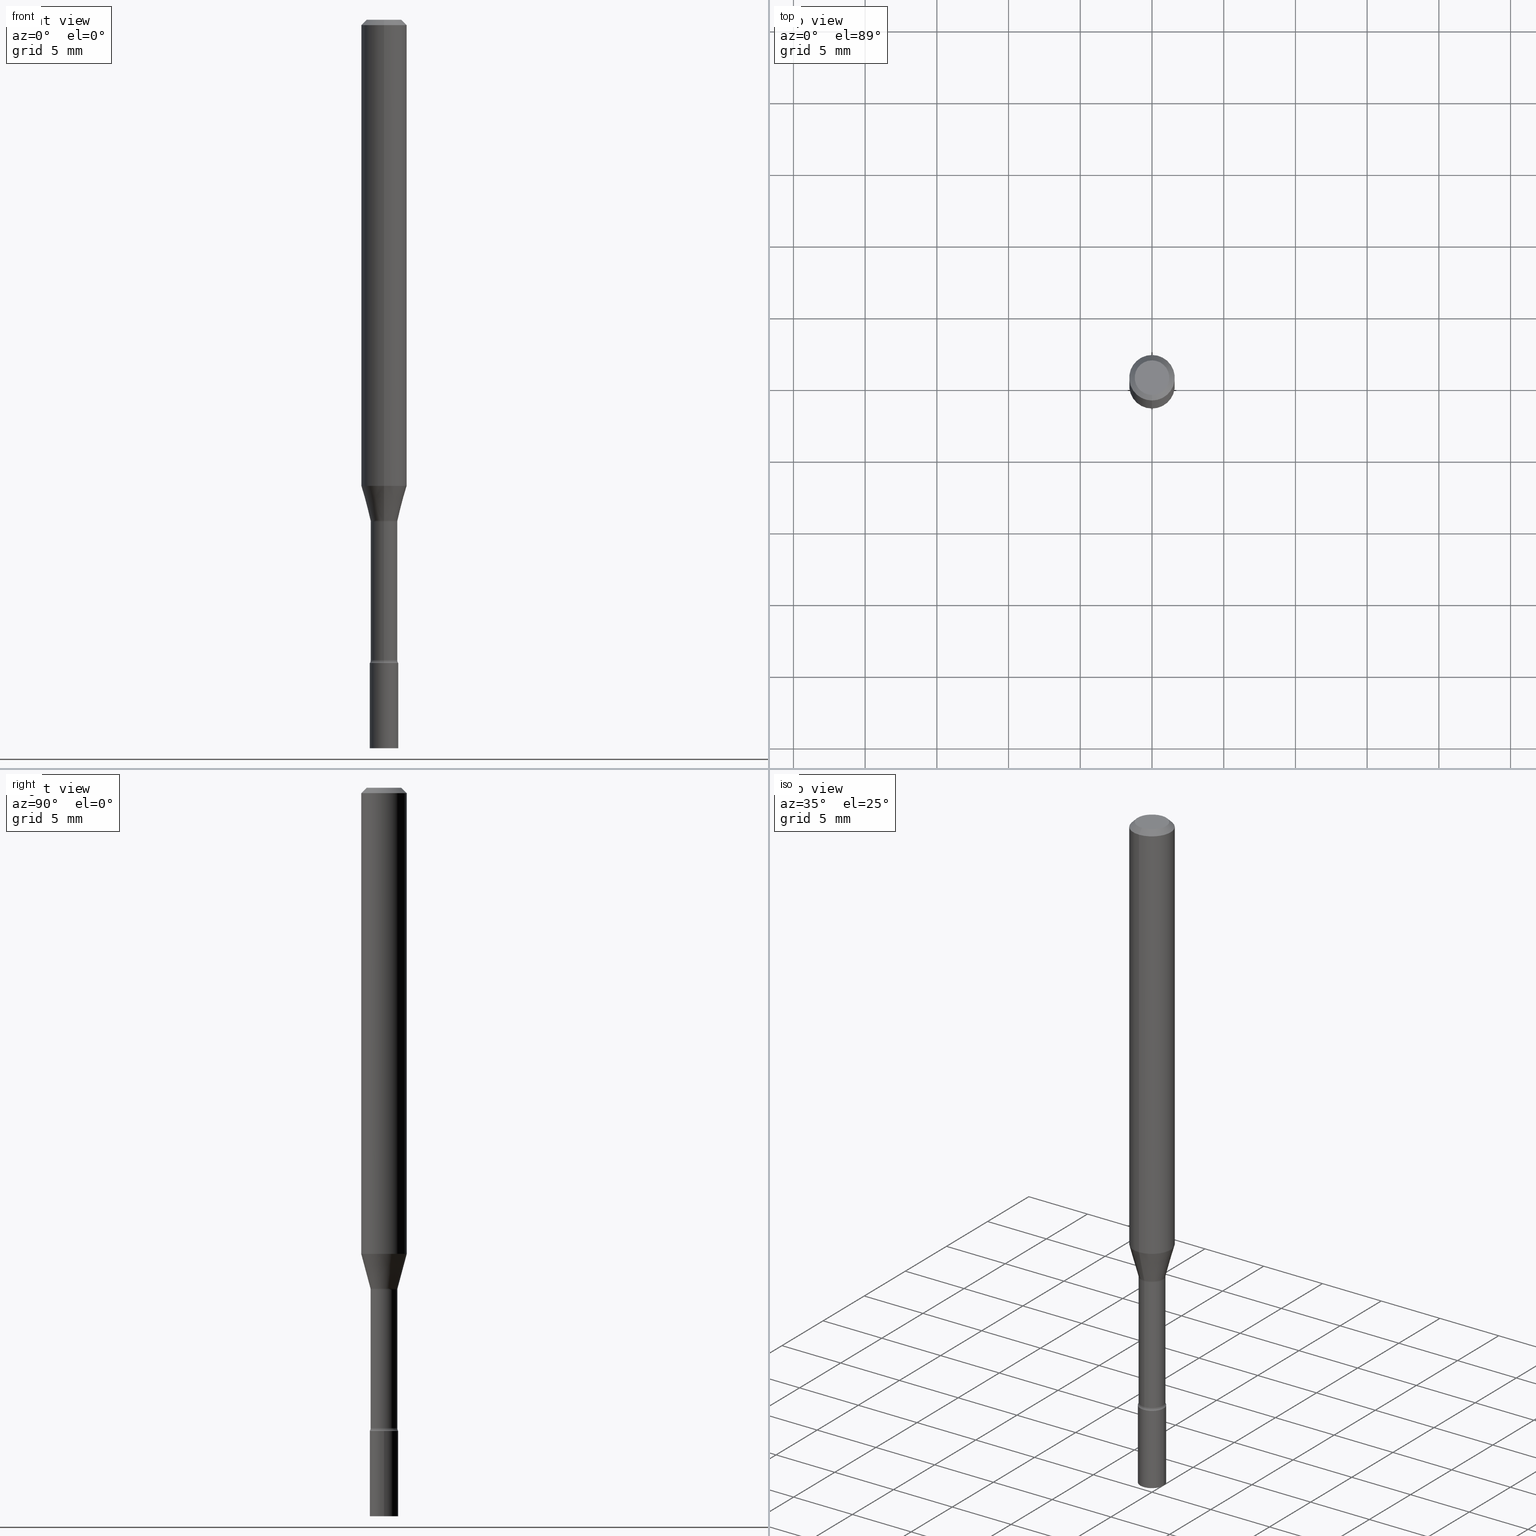
[diagram: canonical four-view strip — front | top / right | iso, engineering-drawing reading convention]
A machine part, canonical four-view strip (front | top / right | iso — engineering-drawing reading convention). The complete STEP part file that produces these views, byte-faithful:
ISO-10303-21;
HEADER;
FILE_DESCRIPTION (( 'STEP AP203' ),
    '1' );
FILE_NAME ('01328.STEP',
    '2024-03-08T21:14:19',
    ( '' ),
    ( '' ),
    'SwSTEP 2.0',
    'SolidWorks 2023',
    '' );
FILE_SCHEMA (( 'CONFIG_CONTROL_DESIGN' ));
ENDSEC;

DATA;
#1 = ORIENTED_EDGE ( 'NONE', *, *, #280, .F. ) ;
#2 = LINE ( 'NONE', #405, #481 ) ;
#3 = CIRCLE ( 'NONE', #144, 0.03899999999999999994 ) ;
#4 = EDGE_CURVE ( 'NONE', #170, #197, #101, .T. ) ;
#5 = AXIS2_PLACEMENT_3D ( 'NONE', #29, #76, #152 ) ;
#6 = CARTESIAN_POINT ( 'NONE',  ( 4.440892098500940720E-16, 0.06249999999999995143, -0.01500000000000024751 ) ) ;
#7 = EDGE_CURVE ( 'NONE', #195, #498, #408, .T. ) ;
#8 = ADVANCED_FACE ( 'NONE', ( #307 ), #262, .F. ) ;
#9 = CARTESIAN_POINT ( 'NONE',  ( 7.070481451418805640E-46, -1.009491138018014356E-31, -2.891277777756140299E-17 ) ) ;
#10 = VECTOR ( 'NONE', #377, 39.37007874015748143 ) ;
#11 = VECTOR ( 'NONE', #376, 39.37007874015748143 ) ;
#12 = EDGE_CURVE ( 'NONE', #498, #195, #132, .T. ) ;
#13 = LOCAL_TIME ( 16, 14, 19.00000000000000000, #337 ) ;
#14 = ADVANCED_FACE ( 'NONE', ( #63 ), #475, .F. ) ;
#15 = VERTEX_POINT ( 'NONE', #518 ) ;
#16 = DIRECTION ( 'NONE',  ( -6.982962677686265922E-15, -1.000000000000000000, 3.491505194639095236E-15 ) ) ;
#17 = ORIENTED_EDGE ( 'NONE', *, *, #217, .F. ) ;
#18 = CARTESIAN_POINT ( 'NONE',  ( 0.000000000000000000, 0.000000000000000000, 0.000000000000000000 ) ) ;
#19 = CARTESIAN_POINT ( 'NONE',  ( 3.369771403578849424E-29, -4.811206128511599572E-15, -1.377974787463811079 ) ) ;
#20 = AXIS2_PLACEMENT_3D ( 'NONE', #185, #246, #382 ) ;
#21 = CARTESIAN_POINT ( 'NONE',  ( 0.000000000000000000, 0.000000000000000000, 0.000000000000000000 ) ) ;
#22 = ORIENTED_EDGE ( 'NONE', *, *, #40, .T. ) ;
#23 = AXIS2_PLACEMENT_3D ( 'NONE', #257, #32, #263 ) ;
#24 = DIRECTION ( 'NONE',  ( -6.982962677686265922E-15, -1.000000000000000000, 3.491505194639095236E-15 ) ) ;
#25 = VERTEX_POINT ( 'NONE', #186 ) ;
#26 = ORIENTED_EDGE ( 'NONE', *, *, #191, .F. ) ;
#27 = CYLINDRICAL_SURFACE ( 'NONE', #380, 0.03899999999999999994 ) ;
#28 = AXIS2_PLACEMENT_3D ( 'NONE', #51, #173, #95 ) ;
#29 = CARTESIAN_POINT ( 'NONE',  ( 4.318697911722950844E-29, -6.165956044396995152E-15, -1.766000000000000014 ) ) ;
#30 = CONICAL_SURFACE ( 'NONE', #453, 0.03716111260566398039, 0.2617993877991502405 ) ;
#31 = FACE_OUTER_BOUND ( 'NONE', #507, .T. ) ;
#32 = DIRECTION ( 'NONE',  ( -2.445452147771860256E-29, 3.491505194639095236E-15, 1.000000000000000000 ) ) ;
#33 = DIRECTION ( 'NONE',  ( 7.105427357601001859E-15, 1.000000000000000000, 0.000000000000000000 ) ) ;
#34 = ORIENTED_EDGE ( 'NONE', *, *, #191, .T. ) ;
#35 = DIRECTION ( 'NONE',  ( 6.982962677686265922E-15, 1.000000000000000000, -3.483106191921935554E-15 ) ) ;
#36 = VECTOR ( 'NONE', #451, 39.37007874015748143 ) ;
#37 = PRODUCT ( '01328', '01328', '', ( #302 ) ) ;
#38 = ADVANCED_FACE ( 'NONE', ( #31 ), #55, .T. ) ;
#39 = COORDINATED_UNIVERSAL_TIME_OFFSET ( 5, 0, .BEHIND. ) ;
#40 = EDGE_CURVE ( 'NONE', #269, #312, #123, .T. ) ;
#41 = DIRECTION ( 'NONE',  ( 7.105427357601001859E-15, 1.000000000000000000, 0.000000000000000000 ) ) ;
#42 = CC_DESIGN_DATE_AND_TIME_ASSIGNMENT ( #350, #503, ( #374 ) ) ;
#43 = AXIS2_PLACEMENT_3D ( 'NONE', #299, #403, #228 ) ;
#44 = EDGE_CURVE ( 'NONE', #131, #230, #220, .T. ) ;
#45 = ORIENTED_EDGE ( 'NONE', *, *, #493, .F. ) ;
#46 = LINE ( 'NONE', #118, #36 ) ;
#47 = CC_DESIGN_PERSON_AND_ORGANIZATION_ASSIGNMENT ( #305, #103, ( #306 ) ) ;
#48 = ORIENTED_EDGE ( 'NONE', *, *, #280, .T. ) ;
#49 = ORIENTED_EDGE ( 'NONE', *, *, #490, .T. ) ;
#50 = AXIS2_PLACEMENT_3D ( 'NONE', #260, #428, #208 ) ;
#51 = CARTESIAN_POINT ( 'NONE',  ( 3.360277459732895560E-29, -4.797651107904894266E-15, -1.374092501787273157 ) ) ;
#52 = CC_DESIGN_APPROVAL ( #457, ( #145 ) ) ;
#53 = ORIENTED_EDGE ( 'NONE', *, *, #484, .T. ) ;
#54 = ADVANCED_FACE ( 'NONE', ( #393 ), #27, .T. ) ;
#55 = CYLINDRICAL_SURFACE ( 'NONE', #75, 0.03665000000000002284 ) ;
#56 = ORIENTED_EDGE ( 'NONE', *, *, #44, .T. ) ;
#57 = CARTESIAN_POINT ( 'NONE',  ( 3.360277459732895560E-29, -4.797651107904894266E-15, -1.374092501787273157 ) ) ;
#58 = CC_DESIGN_DATE_AND_TIME_ASSIGNMENT ( #487, #355, ( #145 ) ) ;
#59 = CARTESIAN_POINT ( 'NONE',  ( -3.606700223024530550E-16, -0.05165000000000619790, -1.757939137763241177 ) ) ;
#60 = COORDINATED_UNIVERSAL_TIME_OFFSET ( 5, 0, .BEHIND. ) ;
#61 = CARTESIAN_POINT ( 'NONE',  ( -4.364351673553916201E-16, -0.06250000000000000000, 2.182190746649434522E-16 ) ) ;
#62 = AXIS2_PLACEMENT_3D ( 'NONE', #267, #515, #399 ) ;
#63 = FACE_OUTER_BOUND ( 'NONE', #155, .T. ) ;
#64 = AXIS2_PLACEMENT_3D ( 'NONE', #495, #424, #136 ) ;
#65 = ADVANCED_FACE ( 'NONE', ( #438 ), #461, .T. ) ;
#66 = DIRECTION ( 'NONE',  ( -6.982962677686266711E-15, -1.000000000000000000, 3.491505194639096025E-15 ) ) ;
#67 = DIRECTION ( 'NONE',  ( -6.982962677686266711E-15, -1.000000000000000000, 3.491505194639096025E-15 ) ) ;
#68 = VERTEX_POINT ( 'NONE', #344 ) ;
#69 = DIRECTION ( 'NONE',  ( -6.982962677686267499E-15, -1.000000000000000000, 0.000000000000000000 ) ) ;
#70 = CARTESIAN_POINT ( 'NONE',  ( 0.03899999999999999994, -7.255298222116054399E-15, -2.000000000000000000 ) ) ;
#71 = CARTESIAN_POINT ( 'NONE',  ( 3.668178221657797460E-31, -5.237257791958653577E-17, -0.01500000000000003067 ) ) ;
#72 = ORIENTED_EDGE ( 'NONE', *, *, #445, .T. ) ;
#73 = PERSON_AND_ORGANIZATION ( #83, #336 ) ;
#74 = DIRECTION ( 'NONE',  ( -6.982962677686265922E-15, -1.000000000000000000, 0.000000000000000000 ) ) ;
#75 = AXIS2_PLACEMENT_3D ( 'NONE', #224, #146, #139 ) ;
#76 = DIRECTION ( 'NONE',  ( -2.438088387897960049E-29, 3.491481338843145188E-15, 1.000000000000000000 ) ) ;
#77 = CIRCLE ( 'NONE', #327, 0.01500000000000001853 ) ;
#78 = EDGE_CURVE ( 'NONE', #370, #232, #259, .T. ) ;
#79 = APPROVAL_ROLE ( '' ) ;
#80 = ORIENTED_EDGE ( 'NONE', *, *, #148, .T. ) ;
#81 = FACE_OUTER_BOUND ( 'NONE', #364, .T. ) ;
#82 = LINE ( 'NONE', #444, #176 ) ;
#83 = PERSON ( 'UNSPECIFIED', 'UNSPECIFIED', 'UNSPECIFIED', ('UNSPECIFIED'), ('UNSPECIFIED'), ('UNSPECIFIED') ) ;
#84 = CIRCLE ( 'NONE', #202, 0.03716111260566398039 ) ;
#85 = CIRCLE ( 'NONE', #199, 0.01500000000000001853 ) ;
#86 = ORIENTED_EDGE ( 'NONE', *, *, #133, .F. ) ;
#87 = EDGE_CURVE ( 'NONE', #170, #468, #100, .T. ) ;
#88 = ADVANCED_FACE ( 'NONE', ( #292 ), #223, .F. ) ;
#89 = AXIS2_PLACEMENT_3D ( 'NONE', #162, #317, #486 ) ;
#90 = FACE_OUTER_BOUND ( 'NONE', #239, .T. ) ;
#91 = CARTESIAN_POINT ( 'NONE',  ( -2.594946623866146070E-16, -0.03716111260566878211, -1.374092501787273157 ) ) ;
#92 = EDGE_LOOP ( 'NONE', ( #17, #86 ) ) ;
#93 = APPROVAL_ROLE ( '' ) ;
#94 = LINE ( 'NONE', #510, #11 ) ;
#95 = DIRECTION ( 'NONE',  ( -6.982962677686265133E-15, -1.000000000000000000, 0.000000000000000000 ) ) ;
#96 = DIRECTION ( 'NONE',  ( 4.937700262164548042E-15, 0.7071067811865451302, -0.7071067811865499042 ) ) ;
#97 = DIRECTION ( 'NONE',  ( 1.000000000000000000, 0.000000000000000000, 0.000000000000000000 ) ) ;
#98 = ORIENTED_EDGE ( 'NONE', *, *, #7, .F. ) ;
#99 = ORIENTED_EDGE ( 'NONE', *, *, #148, .F. ) ;
#100 = CIRCLE ( 'NONE', #439, 0.04749999999999999362 ) ;
#101 = LINE ( 'NONE', #211, #469 ) ;
#102 = AXIS2_PLACEMENT_3D ( 'NONE', #516, #479, #311 ) ;
#103 = PERSON_AND_ORGANIZATION_ROLE ( 'design_supplier' ) ;
#104 = APPROVAL ( #346, 'UNSPECIFIED' ) ;
#105 = ORIENTED_EDGE ( 'NONE', *, *, #490, .F. ) ;
#106 =( LENGTH_UNIT ( ) NAMED_UNIT ( * ) SI_UNIT ( $, .METRE. ) );
#107 = EDGE_CURVE ( 'NONE', #15, #197, #165, .T. ) ;
#108 = DIRECTION ( 'NONE',  ( -2.445468806185136597E-29, 3.491481338843145583E-15, 1.000000000000000000 ) ) ;
#109 = FACE_OUTER_BOUND ( 'NONE', #454, .T. ) ;
#110 = DATE_AND_TIME ( #161, #206 ) ;
#111 = ORIENTED_EDGE ( 'NONE', *, *, #172, .F. ) ;
#112 = CIRCLE ( 'NONE', #501, 0.01500000000000001853 ) ;
#113 = FACE_OUTER_BOUND ( 'NONE', #472, .T. ) ;
#114 = DIRECTION ( 'NONE',  ( 1.000000000000000000, -7.105427357601001070E-15, 4.926315800691323509E-29 ) ) ;
#115 = CIRCLE ( 'NONE', #412, 0.03899999999999999994 ) ;
#116 = ORIENTED_EDGE ( 'NONE', *, *, #217, .T. ) ;
#117 = DIRECTION ( 'NONE',  ( -2.445468806185136597E-29, 3.491481338843145583E-15, 1.000000000000000000 ) ) ;
#118 = CARTESIAN_POINT ( 'NONE',  ( -4.287811248607203282E-16, -0.06250000000000005551, -0.01499999999999981209 ) ) ;
#119 = ORIENTED_EDGE ( 'NONE', *, *, #78, .F. ) ;
#120 = CARTESIAN_POINT ( 'NONE',  ( 4.890937612370273194E-29, -6.982962677686291165E-15, -2.000000000000000000 ) ) ;
#121 = CARTESIAN_POINT ( 'NONE',  ( -2.559255821372017909E-16, -0.03665000000000002284, 1.279636653835229157E-16 ) ) ;
#122 = SHAPE_DEFINITION_REPRESENTATION ( #488, #124 ) ;
#123 = CIRCLE ( 'NONE', #489, 0.01500000000000001853 ) ;
#124 = ADVANCED_BREP_SHAPE_REPRESENTATION ( '01328', ( #129, #126, #235 ), #315 ) ;
#125 = LOCAL_TIME ( 16, 14, 19.00000000000000000, #60 ) ;
#126 = MANIFOLD_SOLID_BREP ( 'Body-Move/Copy2[2]', #410 ) ;
#127 = DIRECTION ( 'NONE',  ( -2.445452147771860256E-29, 3.491505194639094841E-15, 1.000000000000000000 ) ) ;
#128 = AXIS2_PLACEMENT_3D ( 'NONE', #358, #362, #443 ) ;
#129 = MANIFOLD_SOLID_BREP ( 'Body-Move/Copy2[1]', #166 ) ;
#130 = ORIENTED_EDGE ( 'NONE', *, *, #4, .T. ) ;
#131 = VERTEX_POINT ( 'NONE', #300 ) ;
#132 = CIRCLE ( 'NONE', #396, 0.03665000000000003672 ) ;
#133 = EDGE_CURVE ( 'NONE', #131, #402, #234, .T. ) ;
#134 = AXIS2_PLACEMENT_3D ( 'NONE', #418, #205, #16 ) ;
#135 = EDGE_LOOP ( 'NONE', ( #384, #456, #34, #446 ) ) ;
#136 = DIRECTION ( 'NONE',  ( 1.000000000000000000, -6.982962677686265922E-15, 4.876176775795935793E-29 ) ) ;
#137 = PERSON_AND_ORGANIZATION ( #83, #336 ) ;
#138 = ADVANCED_FACE ( 'NONE', ( #354 ), #462, .T. ) ;
#139 = DIRECTION ( 'NONE',  ( -6.982962677686265133E-15, -1.000000000000000000, 3.491505194639095236E-15 ) ) ;
#140 = CARTESIAN_POINT ( 'NONE',  ( 7.070481451418805640E-46, -1.009491138018014356E-31, -2.891277777756140299E-17 ) ) ;
#141 = ORIENTED_EDGE ( 'NONE', *, *, #369, .F. ) ;
#142 = CC_DESIGN_PERSON_AND_ORGANIZATION_ASSIGNMENT ( #427, #331, ( #374 ) ) ;
#143 = APPROVAL_ROLE ( '' ) ;
#144 = AXIS2_PLACEMENT_3D ( 'NONE', #196, #117, #360 ) ;
#145 = SECURITY_CLASSIFICATION ( '', '', #434 ) ;
#146 = DIRECTION ( 'NONE',  ( -2.445452147771860256E-29, 3.491505194639095236E-15, 1.000000000000000000 ) ) ;
#147 = PERSON_AND_ORGANIZATION_ROLE ( 'classification_officer' ) ;
#148 = EDGE_CURVE ( 'NONE', #151, #269, #84, .T. ) ;
#149 = ORIENTED_EDGE ( 'NONE', *, *, #411, .F. ) ;
#150 = DIRECTION ( 'NONE',  ( 2.438088387897960049E-29, -3.491481338843145188E-15, -1.000000000000000000 ) ) ;
#151 = VERTEX_POINT ( 'NONE', #404 ) ;
#152 = DIRECTION ( 'NONE',  ( 1.000000000000000000, -6.982962677686265922E-15, 4.876176775795935793E-29 ) ) ;
#153 = DIRECTION ( 'NONE',  ( -2.445452147771860256E-29, 3.491505194639094841E-15, 1.000000000000000000 ) ) ;
#154 = APPROVAL_STATUS ( 'not_yet_approved' ) ;
#155 = EDGE_LOOP ( 'NONE', ( #119, #478 ) ) ;
#156 = AXIS2_PLACEMENT_3D ( 'NONE', #71, #470, #391 ) ;
#157 = APPROVAL_PERSON_ORGANIZATION ( #222, #104, #93 ) ;
#158 = EDGE_CURVE ( 'NONE', #195, #232, #112, .T. ) ;
#159 = FACE_OUTER_BOUND ( 'NONE', #266, .T. ) ;
#160 = LINE ( 'NONE', #121, #289 ) ;
#161 = CALENDAR_DATE ( 2024, 8, 3 ) ;
#162 = CARTESIAN_POINT ( 'NONE',  ( 4.298985324572002623E-29, -6.137811694322366834E-15, -1.757939137763241400 ) ) ;
#163 = AXIS2_PLACEMENT_3D ( 'NONE', #385, #466, #308 ) ;
#164 = ORIENTED_EDGE ( 'NONE', *, *, #87, .T. ) ;
#165 = CIRCLE ( 'NONE', #156, 0.06250000000000000000 ) ;
#166 = CLOSED_SHELL ( 'NONE', ( #277, #407, #54, #138 ) ) ;
#167 = ORIENTED_EDGE ( 'NONE', *, *, #40, .F. ) ;
#168 = AXIS2_PLACEMENT_3D ( 'NONE', #442, #323, #238 ) ;
#169 = EDGE_CURVE ( 'NONE', #197, #15, #213, .T. ) ;
#170 = VERTEX_POINT ( 'NONE', #519 ) ;
#171 = ORIENTED_EDGE ( 'NONE', *, *, #242, .T. ) ;
#172 = EDGE_CURVE ( 'NONE', #25, #197, #82, .T. ) ;
#173 = DIRECTION ( 'NONE',  ( -2.445452147771860256E-29, 3.491505194639095236E-15, 1.000000000000000000 ) ) ;
#174 = CARTESIAN_POINT ( 'NONE',  ( 3.360277459732895560E-29, -4.797651107904894266E-15, -1.374092501787273157 ) ) ;
#175 = CALENDAR_DATE ( 2024, 8, 3 ) ;
#176 = VECTOR ( 'NONE', #153, 39.37007874015748143 ) ;
#177 = AXIS2_PLACEMENT_3D ( 'NONE', #9, #474, #67 ) ;
#178 = DIRECTION ( 'NONE',  ( -2.445452147771860256E-29, 3.491505194639095236E-15, 1.000000000000000000 ) ) ;
#179 = EDGE_LOOP ( 'NONE', ( #244, #318 ) ) ;
#180 = CARTESIAN_POINT ( 'NONE',  ( 3.369794358452343236E-29, -4.811173255826245661E-15, -1.377974787463811079 ) ) ;
#181 = CARTESIAN_POINT ( 'NONE',  ( -0.03899999999999999994, -6.297347694095203445E-15, -1.766000000000000014 ) ) ;
#182 = DIRECTION ( 'NONE',  ( -2.445452147771860256E-29, 3.491505194639094841E-15, 1.000000000000000000 ) ) ;
#183 = ORIENTED_EDGE ( 'NONE', *, *, #330, .F. ) ;
#184 = APPROVAL_DATE_TIME ( #264, #104 ) ;
#185 = CARTESIAN_POINT ( 'NONE',  ( 4.298985324572002623E-29, -6.137811694322366834E-15, -1.757939137763241400 ) ) ;
#186 = CARTESIAN_POINT ( 'NONE',  ( 4.440892098500935790E-16, 0.06249999999999550360, -1.279526486624345205 ) ) ;
#187 = EDGE_CURVE ( 'NONE', #286, #230, #3, .T. ) ;
#188 = AXIS2_PLACEMENT_3D ( 'NONE', #19, #463, #251 ) ;
#189 = ORIENTED_EDGE ( 'NONE', *, *, #445, .F. ) ;
#190 = ORIENTED_EDGE ( 'NONE', *, *, #172, .T. ) ;
#191 = EDGE_CURVE ( 'NONE', #402, #286, #2, .T. ) ;
#192 = DIRECTION ( 'NONE',  ( 1.000000000000000000, -6.982962677686258033E-15, 0.000000000000000000 ) ) ;
#193 = DIRECTION ( 'NONE',  ( 1.000000000000000000, -6.982962677686265922E-15, 4.876176775795935793E-29 ) ) ;
#194 = CC_DESIGN_PERSON_AND_ORGANIZATION_ASSIGNMENT ( #73, #432, ( #37 ) ) ;
#195 = VERTEX_POINT ( 'NONE', #274 ) ;
#196 = CARTESIAN_POINT ( 'NONE',  ( 4.318697911722950844E-29, -6.165956044396995152E-15, -1.766000000000000014 ) ) ;
#197 = VERTEX_POINT ( 'NONE', #6 ) ;
#198 = DIRECTION ( 'NONE',  ( -2.445468806185136597E-29, 3.491481338843145583E-15, 1.000000000000000000 ) ) ;
#199 = AXIS2_PLACEMENT_3D ( 'NONE', #59, #473, #326 ) ;
#200 = FACE_OUTER_BOUND ( 'NONE', #416, .T. ) ;
#201 = ADVANCED_FACE ( 'NONE', ( #159 ), #361, .T. ) ;
#202 = AXIS2_PLACEMENT_3D ( 'NONE', #57, #341, #272 ) ;
#203 = LOCAL_TIME ( 16, 14, 19.00000000000000000, #250 ) ;
#204 = FACE_OUTER_BOUND ( 'NONE', #298, .T. ) ;
#205 = DIRECTION ( 'NONE',  ( -2.445452147771860256E-29, 3.491505194639095236E-15, 1.000000000000000000 ) ) ;
#206 = LOCAL_TIME ( 16, 14, 19.00000000000000000, #39 ) ;
#207 = ORIENTED_EDGE ( 'NONE', *, *, #158, .F. ) ;
#208 = DIRECTION ( 'NONE',  ( -6.982962677686265133E-15, -1.000000000000000000, 0.000000000000000000 ) ) ;
#209 =( CONVERSION_BASED_UNIT ( 'INCH', #509 ) LENGTH_UNIT ( ) NAMED_UNIT ( #455 ) );
#210 = LINE ( 'NONE', #61, #10 ) ;
#211 = CARTESIAN_POINT ( 'NONE',  ( 4.364351673553919652E-16, 0.06249999999999995143, -0.01500000000000024751 ) ) ;
#212 =( NAMED_UNIT ( * ) PLANE_ANGLE_UNIT ( ) SI_UNIT ( $, .RADIAN. ) );
#213 = CIRCLE ( 'NONE', #128, 0.06250000000000000000 ) ;
#214 = CIRCLE ( 'NONE', #23, 0.06250000000000000000 ) ;
#215 = DIRECTION ( 'NONE',  ( -6.982962677686265922E-15, -1.000000000000000000, 3.491505194639094841E-15 ) ) ;
#216 = PERSON_AND_ORGANIZATION ( #83, #336 ) ;
#217 = EDGE_CURVE ( 'NONE', #402, #131, #512, .T. ) ;
#218 = DIRECTION ( 'NONE',  ( -1.000000000000000000, 6.982962677686265922E-15, -4.883557194083112340E-29 ) ) ;
#219 = EDGE_CURVE ( 'NONE', #312, #68, #278, .T. ) ;
#220 = LINE ( 'NONE', #433, #492 ) ;
#221 = FACE_OUTER_BOUND ( 'NONE', #179, .T. ) ;
#222 = PERSON_AND_ORGANIZATION ( #83, #336 ) ;
#223 = TOROIDAL_SURFACE ( 'NONE', #163, 0.05164999999999999453, 0.01500000000000001853 ) ;
#224 = CARTESIAN_POINT ( 'NONE',  ( 0.000000000000000000, 0.000000000000000000, 0.000000000000000000 ) ) ;
#225 = FACE_OUTER_BOUND ( 'NONE', #359, .T. ) ;
#226 = DIRECTION ( 'NONE',  ( -2.445468806185136597E-29, 3.491481338843145583E-15, 1.000000000000000000 ) ) ;
#227 = CARTESIAN_POINT ( 'NONE',  ( -2.723355444297211781E-16, -0.03900000000000616168, -1.765999999999999792 ) ) ;
#228 = DIRECTION ( 'NONE',  ( 6.982962677686265922E-15, 1.000000000000000000, -3.483106191921935554E-15 ) ) ;
#229 = ADVANCED_FACE ( 'NONE', ( #371 ), #420, .F. ) ;
#230 = VERTEX_POINT ( 'NONE', #181 ) ;
#231 = DIRECTION ( 'NONE',  ( 2.445452147771860256E-29, -3.491505194639095236E-15, -1.000000000000000000 ) ) ;
#232 = VERTEX_POINT ( 'NONE', #387 ) ;
#233 = ADVANCED_FACE ( 'NONE', ( #90 ), #248, .T. ) ;
#234 = CIRCLE ( 'NONE', #452, 0.03899999999999999994 ) ;
#235 = AXIS2_PLACEMENT_3D ( 'NONE', #18, #392, #97 ) ;
#236 = EDGE_CURVE ( 'NONE', #352, #15, #210, .T. ) ;
#237 = ADVANCED_FACE ( 'NONE', ( #200 ), #430, .F. ) ;
#238 = DIRECTION ( 'NONE',  ( -6.982962677686265922E-15, -1.000000000000000000, 3.491505194639095236E-15 ) ) ;
#239 = EDGE_LOOP ( 'NONE', ( #189, #80, #345, #389 ) ) ;
#240 = AXIS2_PLACEMENT_3D ( 'NONE', #120, #198, #295 ) ;
#241 = AXIS2_PLACEMENT_3D ( 'NONE', #467, #505, #425 ) ;
#242 = EDGE_CURVE ( 'NONE', #498, #312, #160, .T. ) ;
#243 = CARTESIAN_POINT ( 'NONE',  ( -2.559255821371679685E-16, -0.03665000000000481761, -1.377974787463811079 ) ) ;
#244 = ORIENTED_EDGE ( 'NONE', *, *, #187, .T. ) ;
#245 = CC_DESIGN_PERSON_AND_ORGANIZATION_ASSIGNMENT ( #216, #386, ( #306 ) ) ;
#246 = DIRECTION ( 'NONE',  ( -2.445452147771860256E-29, 3.491505194639095236E-15, 1.000000000000000000 ) ) ;
#247 = ORIENTED_EDGE ( 'NONE', *, *, #12, .T. ) ;
#248 = CONICAL_SURFACE ( 'NONE', #28, 0.03716111260566398039, 0.2617993877991502405 ) ;
#249 = DIRECTION ( 'NONE',  ( -2.445452147771860256E-29, 3.491505194639095236E-15, 1.000000000000000000 ) ) ;
#250 = COORDINATED_UNIVERSAL_TIME_OFFSET ( 5, 0, .BEHIND. ) ;
#251 = DIRECTION ( 'NONE',  ( -6.982962677686265133E-15, -1.000000000000000000, 0.000000000000000000 ) ) ;
#252 = CARTESIAN_POINT ( 'NONE',  ( 0.000000000000000000, 0.000000000000000000, 0.000000000000000000 ) ) ;
#253 = DIRECTION ( 'NONE',  ( -2.445452147771860256E-29, 3.491505194639095236E-15, 1.000000000000000000 ) ) ;
#254 = APPLICATION_PROTOCOL_DEFINITION ( 'international standard', 'config_control_design', 1994, #348 ) ;
#255 = ORIENTED_EDGE ( 'NONE', *, *, #369, .T. ) ;
#256 = ORIENTED_EDGE ( 'NONE', *, *, #491, .T. ) ;
#257 = CARTESIAN_POINT ( 'NONE',  ( 3.129020794846486150E-29, -4.467473374727209710E-15, -1.279526486624344761 ) ) ;
#258 = APPROVAL_DATE_TIME ( #342, #477 ) ;
#259 = CIRCLE ( 'NONE', #471, 0.03899999999999999994 ) ;
#260 = CARTESIAN_POINT ( 'NONE',  ( 3.369771403578849424E-29, -4.811206128511599572E-15, -1.377974787463811079 ) ) ;
#261 = CONICAL_SURFACE ( 'NONE', #43, 0.06250000000000000000, 0.7853981633974483900 ) ;
#262 = PLANE ( 'NONE',  #62 ) ;
#263 = DIRECTION ( 'NONE',  ( -6.982962677686265922E-15, -1.000000000000000000, 4.370956789862821150E-15 ) ) ;
#264 = DATE_AND_TIME ( #397, #203 ) ;
#265 = ORIENTED_EDGE ( 'NONE', *, *, #7, .T. ) ;
#266 = EDGE_LOOP ( 'NONE', ( #105, #436, #130, #356 ) ) ;
#267 = CARTESIAN_POINT ( 'NONE',  ( 3.316907271900976096E-16, 0.04749999999999999362, -1.803028856341377104E-16 ) ) ;
#268 = CALENDAR_DATE ( 2024, 8, 3 ) ;
#269 = VERTEX_POINT ( 'NONE', #334 ) ;
#270 = LOCAL_TIME ( 16, 14, 19.00000000000000000, #309 ) ;
#271 = CYLINDRICAL_SURFACE ( 'NONE', #168, 0.06250000000000000000 ) ;
#272 = DIRECTION ( 'NONE',  ( -6.982962677686265133E-15, -1.000000000000000000, 0.000000000000000000 ) ) ;
#273 = ORIENTED_EDGE ( 'NONE', *, *, #107, .T. ) ;
#274 = CARTESIAN_POINT ( 'NONE',  ( 2.687627898013010678E-16, 0.03664999999999390273, -1.757939137763241400 ) ) ;
#275 = ORIENTED_EDGE ( 'NONE', *, *, #4, .F. ) ;
#276 = APPROVAL_DATE_TIME ( #110, #457 ) ;
#277 = ADVANCED_FACE ( 'NONE', ( #497 ), #288, .T. ) ;
#278 = CIRCLE ( 'NONE', #50, 0.03665000000000000202 ) ;
#279 = ORIENTED_EDGE ( 'NONE', *, *, #219, .F. ) ;
#280 = EDGE_CURVE ( 'NONE', #195, #68, #373, .T. ) ;
#281 = PRODUCT_RELATED_PRODUCT_CATEGORY ( 'detail', '', ( #37 ) ) ;
#282 = ORIENTED_EDGE ( 'NONE', *, *, #411, .T. ) ;
#283 = CIRCLE ( 'NONE', #102, 0.06250000000000000000 ) ;
#284 = CARTESIAN_POINT ( 'NONE',  ( 0.03899999999999999994, -6.438291588826759175E-15, -1.766000000000000014 ) ) ;
#285 = CC_DESIGN_PERSON_AND_ORGANIZATION_ASSIGNMENT ( #514, #147, ( #145 ) ) ;
#286 = VERTEX_POINT ( 'NONE', #284 ) ;
#287 = CARTESIAN_POINT ( 'NONE',  ( 3.669953230201253816E-16, 0.05164999999999518587, -1.377974787463811301 ) ) ;
#288 = CYLINDRICAL_SURFACE ( 'NONE', #64, 0.03899999999999999994 ) ;
#289 = VECTOR ( 'NONE', #447, 39.37007874015748143 ) ;
#290 = DESIGN_CONTEXT ( 'detailed design', #322, 'design' ) ;
#291 = DIRECTION ( 'NONE',  ( -2.445468806185136877E-29, 3.491481338843145188E-15, 1.000000000000000000 ) ) ;
#292 = FACE_OUTER_BOUND ( 'NONE', #328, .T. ) ;
#293 = CARTESIAN_POINT ( 'NONE',  ( 2.604139126560768311E-16, 0.03665000000000002284, -1.279636653835229157E-16 ) ) ;
#294 = APPROVAL_STATUS ( 'not_yet_approved' ) ;
#295 = DIRECTION ( 'NONE',  ( 1.000000000000000000, -6.982962677686258033E-15, 0.000000000000000000 ) ) ;
#296 = LINE ( 'NONE', #91, #494 ) ;
#297 = DIRECTION ( 'NONE',  ( -2.445452147771860256E-29, 3.491505194639095236E-15, 1.000000000000000000 ) ) ;
#298 = EDGE_LOOP ( 'NONE', ( #111, #379, #440, #324 ) ) ;
#299 = CARTESIAN_POINT ( 'NONE',  ( 3.668178221657797460E-31, -5.237257791958653577E-17, -0.01500000000000003067 ) ) ;
#300 = CARTESIAN_POINT ( 'NONE',  ( -0.03899999999999999994, -6.297347694095203445E-15, -2.000000000000000000 ) ) ;
#301 = DIRECTION ( 'NONE',  ( -6.982962677686265133E-15, -1.000000000000000000, 0.000000000000000000 ) ) ;
#302 = MECHANICAL_CONTEXT ( 'NONE', #348, 'mechanical' ) ;
#303 = DIRECTION ( 'NONE',  ( -2.445452147771860256E-29, 3.491505194639095236E-15, 1.000000000000000000 ) ) ;
#304 = AXIS2_PLACEMENT_3D ( 'NONE', #517, #150, #401 ) ;
#305 = PERSON_AND_ORGANIZATION ( #83, #336 ) ;
#306 = PRODUCT_DEFINITION_FORMATION_WITH_SPECIFIED_SOURCE ( 'ANY', '', #37, .NOT_KNOWN. ) ;
#307 = FACE_OUTER_BOUND ( 'NONE', #421, .T. ) ;
#308 = DIRECTION ( 'NONE',  ( -6.982962677686265922E-15, -1.000000000000000000, 3.491505194639095236E-15 ) ) ;
#309 = COORDINATED_UNIVERSAL_TIME_OFFSET ( 5, 0, .BEHIND. ) ;
#310 = DIRECTION ( 'NONE',  ( -6.982962677686265922E-15, -1.000000000000000000, 0.000000000000000000 ) ) ;
#311 = DIRECTION ( 'NONE',  ( -6.982962677686265922E-15, -1.000000000000000000, 4.370956789862821150E-15 ) ) ;
#312 = VERTEX_POINT ( 'NONE', #243 ) ;
#313 = DIRECTION ( 'NONE',  ( -1.807323732225329745E-15, -0.2588190451025181305, 0.9659258262890689783 ) ) ;
#314 = AXIS2_PLACEMENT_3D ( 'NONE', #506, #182, #215 ) ;
#315 =( GEOMETRIC_REPRESENTATION_CONTEXT ( 3 ) GLOBAL_UNCERTAINTY_ASSIGNED_CONTEXT ( ( #500 ) ) GLOBAL_UNIT_ASSIGNED_CONTEXT ( ( #209, #212, #375 ) ) REPRESENTATION_CONTEXT ( 'NONE', 'WORKASPACE' ) );
#316 = DIRECTION ( 'NONE',  ( -2.445468806185136877E-29, 3.491481338843145188E-15, 1.000000000000000000 ) ) ;
#317 = DIRECTION ( 'NONE',  ( -2.445452147771860256E-29, 3.491505194639095236E-15, 1.000000000000000000 ) ) ;
#318 = ORIENTED_EDGE ( 'NONE', *, *, #520, .T. ) ;
#319 = ADVANCED_FACE ( 'NONE', ( #204 ), #413, .T. ) ;
#320 = ORIENTED_EDGE ( 'NONE', *, *, #107, .F. ) ;
#321 = AXIS2_PLACEMENT_3D ( 'NONE', #252, #178, #338 ) ;
#322 = APPLICATION_CONTEXT ( 'configuration controlled 3d designs of mechanical parts and assemblies' ) ;
#323 = DIRECTION ( 'NONE',  ( -2.445452147771860256E-29, 3.491505194639095236E-15, 1.000000000000000000 ) ) ;
#324 = ORIENTED_EDGE ( 'NONE', *, *, #169, .F. ) ;
#325 = ORIENTED_EDGE ( 'NONE', *, *, #343, .F. ) ;
#326 = DIRECTION ( 'NONE',  ( -6.982962677686267499E-15, -1.000000000000000000, 0.000000000000000000 ) ) ;
#327 = AXIS2_PLACEMENT_3D ( 'NONE', #287, #333, #41 ) ;
#328 = EDGE_LOOP ( 'NONE', ( #426, #141, #22, #400 ) ) ;
#329 = EDGE_LOOP ( 'NONE', ( #247, #48, #279, #372 ) ) ;
#330 = EDGE_CURVE ( 'NONE', #269, #352, #296, .T. ) ;
#331 = PERSON_AND_ORGANIZATION_ROLE ( 'creator' ) ;
#332 = DIRECTION ( 'NONE',  ( -6.982962677686265133E-15, -1.000000000000000000, 0.000000000000000000 ) ) ;
#333 = DIRECTION ( 'NONE',  ( 1.000000000000000000, -7.105427357601001070E-15, 4.926315800691323509E-29 ) ) ;
#334 = CARTESIAN_POINT ( 'NONE',  ( -2.594946623866146070E-16, -0.03716111260566878211, -1.374092501787273157 ) ) ;
#335 = VECTOR ( 'NONE', #127, 39.37007874015748143 ) ;
#336 = ORGANIZATION ( 'UNSPECIFIED', 'UNSPECIFIED', '' ) ;
#337 = COORDINATED_UNIVERSAL_TIME_OFFSET ( 5, 0, .BEHIND. ) ;
#338 = DIRECTION ( 'NONE',  ( -6.982962677686265133E-15, -1.000000000000000000, 3.491505194639095236E-15 ) ) ;
#339 = ORIENTED_EDGE ( 'NONE', *, *, #493, .T. ) ;
#340 = DIRECTION ( 'NONE',  ( -6.982962677686264344E-15, -1.000000000000000000, 0.000000000000000000 ) ) ;
#341 = DIRECTION ( 'NONE',  ( -2.445452147771860256E-29, 3.491505194639095236E-15, 1.000000000000000000 ) ) ;
#342 = DATE_AND_TIME ( #381, #125 ) ;
#343 = EDGE_CURVE ( 'NONE', #68, #312, #513, .T. ) ;
#344 = CARTESIAN_POINT ( 'NONE',  ( 2.604139126561198240E-16, 0.03664999999999519337, -1.377974787463811079 ) ) ;
#345 = ORIENTED_EDGE ( 'NONE', *, *, #330, .T. ) ;
#346 = APPROVAL_STATUS ( 'not_yet_approved' ) ;
#347 = CARTESIAN_POINT ( 'NONE',  ( 4.298956040095331053E-29, -6.137853631359729833E-15, -1.757939137763241400 ) ) ;
#348 = APPLICATION_CONTEXT ( 'configuration controlled 3d designs of mechanical parts and assemblies' ) ;
#349 = DIRECTION ( 'NONE',  ( -2.445452147771860256E-29, 3.491505194639095236E-15, 1.000000000000000000 ) ) ;
#350 = DATE_AND_TIME ( #175, #13 ) ;
#351 = CC_DESIGN_SECURITY_CLASSIFICATION ( #145, ( #306 ) ) ;
#352 = VERTEX_POINT ( 'NONE', #483 ) ;
#353 = PLANE ( 'NONE',  #5 ) ;
#354 = FACE_OUTER_BOUND ( 'NONE', #92, .T. ) ;
#355 = DATE_TIME_ROLE ( 'classification_date' ) ;
#356 = ORIENTED_EDGE ( 'NONE', *, *, #169, .T. ) ;
#357 = ADVANCED_FACE ( 'NONE', ( #81 ), #30, .T. ) ;
#358 = CARTESIAN_POINT ( 'NONE',  ( 3.668178221657797460E-31, -5.237257791958653577E-17, -0.01500000000000003067 ) ) ;
#359 = EDGE_LOOP ( 'NONE', ( #45, #49, #273, #275 ) ) ;
#360 = DIRECTION ( 'NONE',  ( 1.000000000000000000, -6.982962677686258033E-15, 0.000000000000000000 ) ) ;
#361 = CONICAL_SURFACE ( 'NONE', #367, 0.06250000000000000000, 0.7853981633974483900 ) ;
#362 = DIRECTION ( 'NONE',  ( -2.445452147771860256E-29, 3.491505194639095236E-15, 1.000000000000000000 ) ) ;
#363 = PERSON_AND_ORGANIZATION ( #83, #336 ) ;
#364 = EDGE_LOOP ( 'NONE', ( #255, #72, #149, #183 ) ) ;
#365 = APPROVAL_PERSON_ORGANIZATION ( #137, #477, #143 ) ;
#366 = ORIENTED_EDGE ( 'NONE', *, *, #236, .F. ) ;
#367 = AXIS2_PLACEMENT_3D ( 'NONE', #485, #231, #35 ) ;
#368 = CC_DESIGN_APPROVAL ( #477, ( #306 ) ) ;
#369 = EDGE_CURVE ( 'NONE', #269, #151, #398, .T. ) ;
#370 = VERTEX_POINT ( 'NONE', #227 ) ;
#371 = FACE_OUTER_BOUND ( 'NONE', #406, .T. ) ;
#372 = ORIENTED_EDGE ( 'NONE', *, *, #242, .F. ) ;
#373 = LINE ( 'NONE', #293, #335 ) ;
#374 = PRODUCT_DEFINITION ( 'UNKNOWN', '', #306, #290 ) ;
#375 =( NAMED_UNIT ( * ) SI_UNIT ( $, .STERADIAN. ) SOLID_ANGLE_UNIT ( ) );
#376 = DIRECTION ( 'NONE',  ( 1.839019923739599921E-15, 0.2588190451025249028, 0.9659258262890670910 ) ) ;
#377 = DIRECTION ( 'NONE',  ( -2.445452147771860256E-29, 3.491505194639094841E-15, 1.000000000000000000 ) ) ;
#378 = ORIENTED_EDGE ( 'NONE', *, *, #78, .T. ) ;
#379 = ORIENTED_EDGE ( 'NONE', *, *, #388, .T. ) ;
#380 = AXIS2_PLACEMENT_3D ( 'NONE', #21, #108, #193 ) ;
#381 = CALENDAR_DATE ( 2024, 8, 3 ) ;
#382 = DIRECTION ( 'NONE',  ( -6.982962677686266711E-15, -1.000000000000000000, 3.491505194639095236E-15 ) ) ;
#383 = DIRECTION ( 'NONE',  ( -2.445452147771860256E-29, 3.491505194639095236E-15, 1.000000000000000000 ) ) ;
#384 = ORIENTED_EDGE ( 'NONE', *, *, #44, .F. ) ;
#385 = CARTESIAN_POINT ( 'NONE',  ( 3.369794358452343236E-29, -4.811173255826245661E-15, -1.377974787463811079 ) ) ;
#386 = PERSON_AND_ORGANIZATION_ROLE ( 'creator' ) ;
#387 = CARTESIAN_POINT ( 'NONE',  ( 2.771116669464822622E-16, 0.03899999999999383127, -1.766000000000000236 ) ) ;
#388 = EDGE_CURVE ( 'NONE', #25, #352, #214, .T. ) ;
#389 = ORIENTED_EDGE ( 'NONE', *, *, #388, .F. ) ;
#390 = CARTESIAN_POINT ( 'NONE',  ( 4.318668492965105110E-29, -6.165998173732642044E-15, -1.766000000000000014 ) ) ;
#391 = DIRECTION ( 'NONE',  ( -6.982962677686265922E-15, -1.000000000000000000, 3.483106191921935554E-15 ) ) ;
#392 = DIRECTION ( 'NONE',  ( 0.000000000000000000, 0.000000000000000000, 1.000000000000000000 ) ) ;
#393 = FACE_OUTER_BOUND ( 'NONE', #135, .T. ) ;
#394 = CARTESIAN_POINT ( 'NONE',  ( 4.890937612370273194E-29, -6.982962677686291165E-15, -2.000000000000000000 ) ) ;
#395 = EDGE_CURVE ( 'NONE', #232, #370, #115, .T. ) ;
#396 = AXIS2_PLACEMENT_3D ( 'NONE', #511, #429, #74 ) ;
#397 = CALENDAR_DATE ( 2024, 8, 3 ) ;
#398 = CIRCLE ( 'NONE', #441, 0.03716111260566398039 ) ;
#399 = DIRECTION ( 'NONE',  ( 6.982962677686265922E-15, 1.000000000000000000, -3.491505194639094841E-15 ) ) ;
#400 = ORIENTED_EDGE ( 'NONE', *, *, #219, .T. ) ;
#401 = DIRECTION ( 'NONE',  ( -1.000000000000000000, 6.982962677686265922E-15, -4.876176775795935793E-29 ) ) ;
#402 = VERTEX_POINT ( 'NONE', #70 ) ;
#403 = DIRECTION ( 'NONE',  ( 2.445452147771860256E-29, -3.491505194639095236E-15, -1.000000000000000000 ) ) ;
#404 = CARTESIAN_POINT ( 'NONE',  ( 3.540673979986519232E-16, 0.03716111260565918561, -1.374092501787273157 ) ) ;
#405 = CARTESIAN_POINT ( 'NONE',  ( 0.03899999999999999994, -2.723355444297643682E-16, 1.901708942560414931E-30 ) ) ;
#406 = EDGE_LOOP ( 'NONE', ( #98, #465, #423, #417 ) ) ;
#407 = ADVANCED_FACE ( 'NONE', ( #221 ), #353, .T. ) ;
#408 = CIRCLE ( 'NONE', #449, 0.03665000000000003672 ) ;
#409 = CIRCLE ( 'NONE', #177, 0.04749999999999999362 ) ;
#410 = CLOSED_SHELL ( 'NONE', ( #415, #65, #229, #419, #437, #357, #233, #319, #201, #8, #14, #237, #38, #88 ) ) ;
#411 = EDGE_CURVE ( 'NONE', #352, #25, #283, .T. ) ;
#412 = AXIS2_PLACEMENT_3D ( 'NONE', #390, #349, #340 ) ;
#413 = CYLINDRICAL_SURFACE ( 'NONE', #134, 0.06250000000000000000 ) ;
#414 = ORIENTED_EDGE ( 'NONE', *, *, #12, .F. ) ;
#415 = ADVANCED_FACE ( 'NONE', ( #109 ), #422, .F. ) ;
#416 = EDGE_LOOP ( 'NONE', ( #207, #414, #53, #378 ) ) ;
#417 = ORIENTED_EDGE ( 'NONE', *, *, #484, .F. ) ;
#418 = CARTESIAN_POINT ( 'NONE',  ( 0.000000000000000000, 0.000000000000000000, 0.000000000000000000 ) ) ;
#419 = ADVANCED_FACE ( 'NONE', ( #225 ), #261, .T. ) ;
#420 = TOROIDAL_SURFACE ( 'NONE', #20, 0.05165000000000005698, 0.01500000000000001853 ) ;
#421 = EDGE_LOOP ( 'NONE', ( #164, #339 ) ) ;
#422 = TOROIDAL_SURFACE ( 'NONE', #431, 0.05164999999999999453, 0.01500000000000001853 ) ;
#423 = ORIENTED_EDGE ( 'NONE', *, *, #395, .T. ) ;
#424 = DIRECTION ( 'NONE',  ( -2.445468806185136597E-29, 3.491481338843145583E-15, 1.000000000000000000 ) ) ;
#425 = DIRECTION ( 'NONE',  ( 1.000000000000000000, -6.982962677686258033E-15, 0.000000000000000000 ) ) ;
#426 = ORIENTED_EDGE ( 'NONE', *, *, #491, .F. ) ;
#427 = PERSON_AND_ORGANIZATION ( #83, #336 ) ;
#428 = DIRECTION ( 'NONE',  ( -2.445452147771860256E-29, 3.491505194639095236E-15, 1.000000000000000000 ) ) ;
#429 = DIRECTION ( 'NONE',  ( -2.445452147771860256E-29, 3.491505194639095236E-15, 1.000000000000000000 ) ) ;
#430 = TOROIDAL_SURFACE ( 'NONE', #89, 0.05165000000000005698, 0.01500000000000001853 ) ;
#431 = AXIS2_PLACEMENT_3D ( 'NONE', #180, #253, #24 ) ;
#432 = PERSON_AND_ORGANIZATION_ROLE ( 'design_owner' ) ;
#433 = CARTESIAN_POINT ( 'NONE',  ( -0.03899999999999999994, 2.771116669464390721E-16, -1.918384685199413078E-30 ) ) ;
#434 = SECURITY_CLASSIFICATION_LEVEL ( 'unclassified' ) ;
#435 = CARTESIAN_POINT ( 'NONE',  ( -3.606700223024618804E-16, -0.05165000000000481012, -1.377974787463810857 ) ) ;
#436 = ORIENTED_EDGE ( 'NONE', *, *, #87, .F. ) ;
#437 = ADVANCED_FACE ( 'NONE', ( #113 ), #271, .T. ) ;
#438 = FACE_OUTER_BOUND ( 'NONE', #329, .T. ) ;
#439 = AXIS2_PLACEMENT_3D ( 'NONE', #140, #303, #66 ) ;
#440 = ORIENTED_EDGE ( 'NONE', *, *, #236, .T. ) ;
#441 = AXIS2_PLACEMENT_3D ( 'NONE', #460, #508, #301 ) ;
#442 = CARTESIAN_POINT ( 'NONE',  ( 0.000000000000000000, 0.000000000000000000, 0.000000000000000000 ) ) ;
#443 = DIRECTION ( 'NONE',  ( -6.982962677686265922E-15, -1.000000000000000000, 3.483106191921935554E-15 ) ) ;
#444 = CARTESIAN_POINT ( 'NONE',  ( 4.440892098500625669E-16, 0.06250000000000000000, -2.182190746649434522E-16 ) ) ;
#445 = EDGE_CURVE ( 'NONE', #151, #25, #94, .T. ) ;
#446 = ORIENTED_EDGE ( 'NONE', *, *, #520, .F. ) ;
#447 = DIRECTION ( 'NONE',  ( -2.445452147771860256E-29, 3.491505194639094841E-15, 1.000000000000000000 ) ) ;
#448 = ORIENTED_EDGE ( 'NONE', *, *, #343, .T. ) ;
#449 = AXIS2_PLACEMENT_3D ( 'NONE', #347, #383, #310 ) ;
#450 = APPROVAL_PERSON_ORGANIZATION ( #363, #457, #79 ) ;
#451 = DIRECTION ( 'NONE',  ( -4.851104656540964275E-15, -0.7071067811865500152, -0.7071067811865450192 ) ) ;
#452 = AXIS2_PLACEMENT_3D ( 'NONE', #394, #226, #192 ) ;
#453 = AXIS2_PLACEMENT_3D ( 'NONE', #174, #249, #332 ) ;
#454 = EDGE_LOOP ( 'NONE', ( #99, #256, #448, #167 ) ) ;
#455 = DIMENSIONAL_EXPONENTS ( 1.000000000000000000, 0.000000000000000000, 0.000000000000000000, 0.000000000000000000, 0.000000000000000000, 0.000000000000000000, 0.000000000000000000 ) ;
#456 = ORIENTED_EDGE ( 'NONE', *, *, #133, .T. ) ;
#457 = APPROVAL ( #154, 'UNSPECIFIED' ) ;
#458 = CARTESIAN_POINT ( 'NONE',  ( -3.773273898774340269E-16, -0.04749999999999999362, 1.369337189677956059E-16 ) ) ;
#459 = APPLICATION_PROTOCOL_DEFINITION ( 'international standard', 'config_control_design', 1994, #322 ) ;
#460 = CARTESIAN_POINT ( 'NONE',  ( 3.360277459732895560E-29, -4.797651107904894266E-15, -1.374092501787273157 ) ) ;
#461 = CYLINDRICAL_SURFACE ( 'NONE', #321, 0.03665000000000002284 ) ;
#462 = PLANE ( 'NONE',  #304 ) ;
#463 = DIRECTION ( 'NONE',  ( -2.445452147771860256E-29, 3.491505194639095236E-15, 1.000000000000000000 ) ) ;
#464 = DIRECTION ( 'NONE',  ( -6.982962677686264344E-15, -1.000000000000000000, 0.000000000000000000 ) ) ;
#465 = ORIENTED_EDGE ( 'NONE', *, *, #158, .T. ) ;
#466 = DIRECTION ( 'NONE',  ( -2.445452147771860256E-29, 3.491505194639095236E-15, 1.000000000000000000 ) ) ;
#467 = CARTESIAN_POINT ( 'NONE',  ( 4.318697911722950844E-29, -6.165956044396995152E-15, -1.766000000000000014 ) ) ;
#468 = VERTEX_POINT ( 'NONE', #458 ) ;
#469 = VECTOR ( 'NONE', #96, 39.37007874015748143 ) ;
#470 = DIRECTION ( 'NONE',  ( -2.445452147771860256E-29, 3.491505194639095236E-15, 1.000000000000000000 ) ) ;
#471 = AXIS2_PLACEMENT_3D ( 'NONE', #504, #297, #464 ) ;
#472 = EDGE_LOOP ( 'NONE', ( #282, #190, #320, #366 ) ) ;
#473 = DIRECTION ( 'NONE',  ( -1.000000000000000000, 6.982962677686265922E-15, -4.883557194083112340E-29 ) ) ;
#474 = DIRECTION ( 'NONE',  ( -2.445452147771860256E-29, 3.491505194639095236E-15, 1.000000000000000000 ) ) ;
#475 = PLANE ( 'NONE',  #314 ) ;
#476 = ORIENTED_EDGE ( 'NONE', *, *, #187, .F. ) ;
#477 = APPROVAL ( #294, 'UNSPECIFIED' ) ;
#478 = ORIENTED_EDGE ( 'NONE', *, *, #395, .F. ) ;
#479 = DIRECTION ( 'NONE',  ( -2.445452147771860256E-29, 3.491505194639095236E-15, 1.000000000000000000 ) ) ;
#480 = CARTESIAN_POINT ( 'NONE',  ( 3.669953230201350945E-16, 0.05164999999999391606, -1.757939137763241622 ) ) ;
#481 = VECTOR ( 'NONE', #316, 39.37007874015748143 ) ;
#482 = CIRCLE ( 'NONE', #241, 0.03899999999999999994 ) ;
#483 = CARTESIAN_POINT ( 'NONE',  ( -4.364351673553605587E-16, -0.06250000000000449640, -1.279526486624344539 ) ) ;
#484 = EDGE_CURVE ( 'NONE', #498, #370, #85, .T. ) ;
#485 = CARTESIAN_POINT ( 'NONE',  ( 3.668178221657797460E-31, -5.237257791958653577E-17, -0.01500000000000003067 ) ) ;
#486 = DIRECTION ( 'NONE',  ( -6.982962677686266711E-15, -1.000000000000000000, 3.491505194639095236E-15 ) ) ;
#487 = DATE_AND_TIME ( #268, #270 ) ;
#488 = PRODUCT_DEFINITION_SHAPE ( 'NONE', 'NONE',  #374 ) ;
#489 = AXIS2_PLACEMENT_3D ( 'NONE', #435, #218, #69 ) ;
#490 = EDGE_CURVE ( 'NONE', #468, #15, #46, .T. ) ;
#491 = EDGE_CURVE ( 'NONE', #151, #68, #77, .T. ) ;
#492 = VECTOR ( 'NONE', #291, 39.37007874015748143 ) ;
#493 = EDGE_CURVE ( 'NONE', #468, #170, #409, .T. ) ;
#494 = VECTOR ( 'NONE', #313, 39.37007874015748143 ) ;
#495 = CARTESIAN_POINT ( 'NONE',  ( 0.000000000000000000, 0.000000000000000000, 0.000000000000000000 ) ) ;
#496 = EDGE_LOOP ( 'NONE', ( #116, #56, #476, #26 ) ) ;
#497 = FACE_OUTER_BOUND ( 'NONE', #496, .T. ) ;
#498 = VERTEX_POINT ( 'NONE', #499 ) ;
#499 = CARTESIAN_POINT ( 'NONE',  ( -2.559255821371589459E-16, -0.03665000000000617764, -1.757939137763241400 ) ) ;
#500 = UNCERTAINTY_MEASURE_WITH_UNIT (LENGTH_MEASURE( 1.000000000000000082E-05 ), #209, 'distance_accuracy_value', 'NONE');
#501 = AXIS2_PLACEMENT_3D ( 'NONE', #480, #114, #33 ) ;
#502 = CC_DESIGN_APPROVAL ( #104, ( #374 ) ) ;
#503 = DATE_TIME_ROLE ( 'creation_date' ) ;
#504 = CARTESIAN_POINT ( 'NONE',  ( 4.318668492965105110E-29, -6.165998173732642044E-15, -1.766000000000000014 ) ) ;
#505 = DIRECTION ( 'NONE',  ( -2.445468806185136597E-29, 3.491481338843145583E-15, 1.000000000000000000 ) ) ;
#506 = CARTESIAN_POINT ( 'NONE',  ( 2.723355444298075090E-16, 0.03899999999999383127, -1.766000000000000014 ) ) ;
#507 = EDGE_LOOP ( 'NONE', ( #1, #265, #171, #325 ) ) ;
#508 = DIRECTION ( 'NONE',  ( -2.445452147771860256E-29, 3.491505194639095236E-15, 1.000000000000000000 ) ) ;
#509 = LENGTH_MEASURE_WITH_UNIT ( LENGTH_MEASURE( 0.02539999999999999897 ), #106 );
#510 = CARTESIAN_POINT ( 'NONE',  ( 2.640455861472098731E-16, 0.03716111260565918561, -1.374092501787273157 ) ) ;
#511 = CARTESIAN_POINT ( 'NONE',  ( 4.298956040095331053E-29, -6.137853631359729833E-15, -1.757939137763241400 ) ) ;
#512 = CIRCLE ( 'NONE', #240, 0.03899999999999999994 ) ;
#513 = CIRCLE ( 'NONE', #188, 0.03665000000000000202 ) ;
#514 = PERSON_AND_ORGANIZATION ( #83, #336 ) ;
#515 = DIRECTION ( 'NONE',  ( 2.445452147771860256E-29, -3.491505194639094841E-15, -1.000000000000000000 ) ) ;
#516 = CARTESIAN_POINT ( 'NONE',  ( 3.129020794846486150E-29, -4.467473374727209710E-15, -1.279526486624344761 ) ) ;
#517 = CARTESIAN_POINT ( 'NONE',  ( 2.723355444298132776E-16, 0.03899999999999301248, -2.000000000000000000 ) ) ;
#518 = CARTESIAN_POINT ( 'NONE',  ( -4.364351673553912750E-16, -0.06250000000000005551, -0.01499999999999981209 ) ) ;
#519 = CARTESIAN_POINT ( 'NONE',  ( 3.840629472727447874E-16, 0.04749999999999999362, -1.947592745229184365E-16 ) ) ;
#520 = EDGE_CURVE ( 'NONE', #230, #286, #482, .T. ) ;
ENDSEC;
END-ISO-10303-21;
